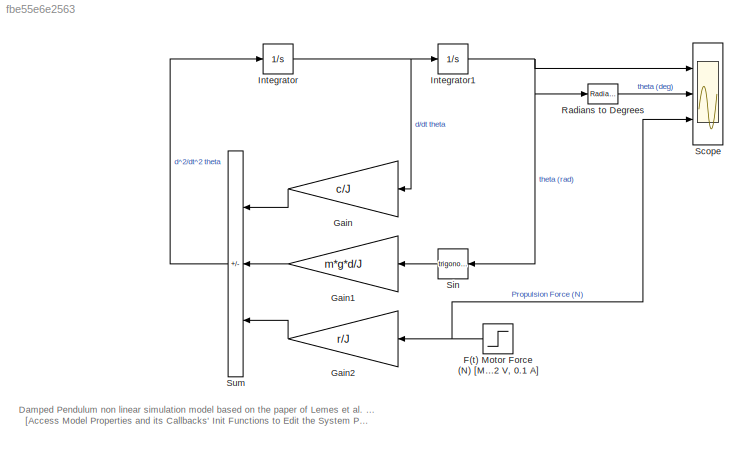
MODEL slx_fbe55e6e2563
KIND model
CONFIG AbsTol = auto
CONFIG EnableMultiTasking = off
CONFIG FixedStep = 1e-3
CONFIG InitFcn = J = 0.4; % [kg*m^2]\nc = 0.2; % damping factor\nm = 0.4; % [kg]\ng = 9.8; % [m/s^2]\nd = 0.05; % [m]\nr = 0.4; % [m]
CONFIG MaxStep = auto
CONFIG MinStep = auto
CONFIG RelTol = 1e-3
CONFIG SampleTimeConstraint = Unconstrained
CONFIG Solver = FixedStepAuto
CONFIG SolverName = FixedStepAuto
CONFIG StartTime = 0.0
CONFIG StopTime = 40
BLOCK [Step] F(t) Motor Force (N) [Max 0.25 N for 3 grams Coreless Motor 7x20 mm with 55 mm propeller @ 4.2 V, 0.1 A]
  After = 0.25/2
  Before = 0.25/1
  SampleTime = 0
  Time = 20
BLOCK [Gain] Gain
  Gain = c/J
BLOCK [Gain] Gain1
  Gain = m*g*d/J
BLOCK [Gain] Gain2
  Gain = r/J
BLOCK [Integrator] Integrator
  Ports = [1, 1]
BLOCK [Integrator] Integrator1
  Ports = [1, 1]
BLOCK [Reference] Radians to Degrees  REF=simulink_extras/Transformations/Radians
to Degrees
  Ports = [1, 1]
  SourceBlock = simulink_extras/Transformations/Radians\nto Degrees
  SourceType = RadiansToDegrees
BLOCK [Scope] Scope
  Floating = off
  NumInputPorts = 3
  Ports = [3]
  ScopeSpecificationString = Simulink.scopes.TimeScopeBlockCfg('CurrentConfiguration', extmgr.ConfigurationSet(extmgr.Configuration('Core','General UI',true),extmgr.Configuration('Core','Source UI',true),extmgr.Configuration('Sources','WiredSimulink',true),extmgr.Configuration('Visuals','Time Domain',true,'SerializedDisplays',{struct('MinYLimReal','-0.08656','MaxYLimReal','0.77907','YLabelReal','','MinYLimMag','0.00000','MaxY...<+2947ch>
BLOCK [Trigonometry] Sin
  OutputSignalType = real
  Ports = [1, 1]
BLOCK [Sum] Sum
  IconShape = rectangular
  Inputs = --+
  Ports = [3, 1]
ANNOTATION (root): Damped Pendulum non linear simulation model based on the paper of Lemes et al. (2010). [Access Model Properties and its Callbacks' Init Functions to Edit the System Params.]
NET F(t) Motor Force (N) [Max 0.25 N for 3 grams Coreless Motor 7x20 mm with 55 mm propeller @ 4.2 V, 0.1 A]:1 -> Gain2:1, Scope:3
LINE Gain1:1 -> Sum:2
LINE Gain2:1 -> Sum:3
LINE Gain:1 -> Sum:1
NET Integrator1:1 -> Radians to Degrees:1, Scope:1, Sin:1
NET Integrator:1 -> Gain:1, Integrator1:1
LINE Radians to Degrees:1 -> Scope:2
LINE Sin:1 -> Gain1:1
LINE Sum:1 -> Integrator:1
note: NET lines group one-source signal fan-out (src -> all destinations, sorted); 1:1 wires keep LINE
